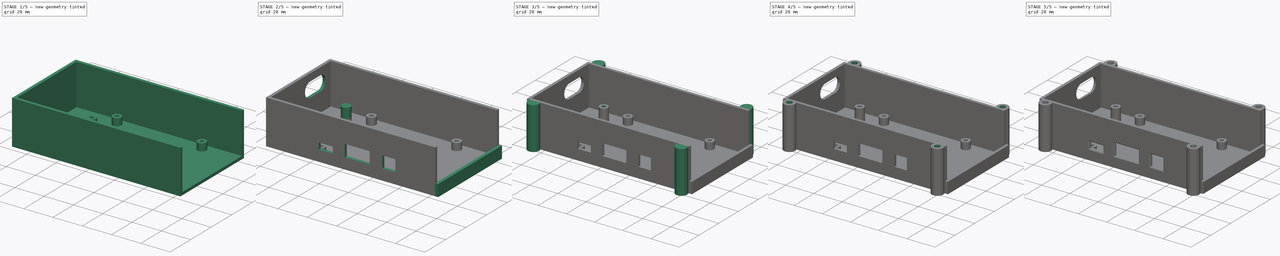
[diagram: build sequence overview — one tinted view per stage of 5, left to right]
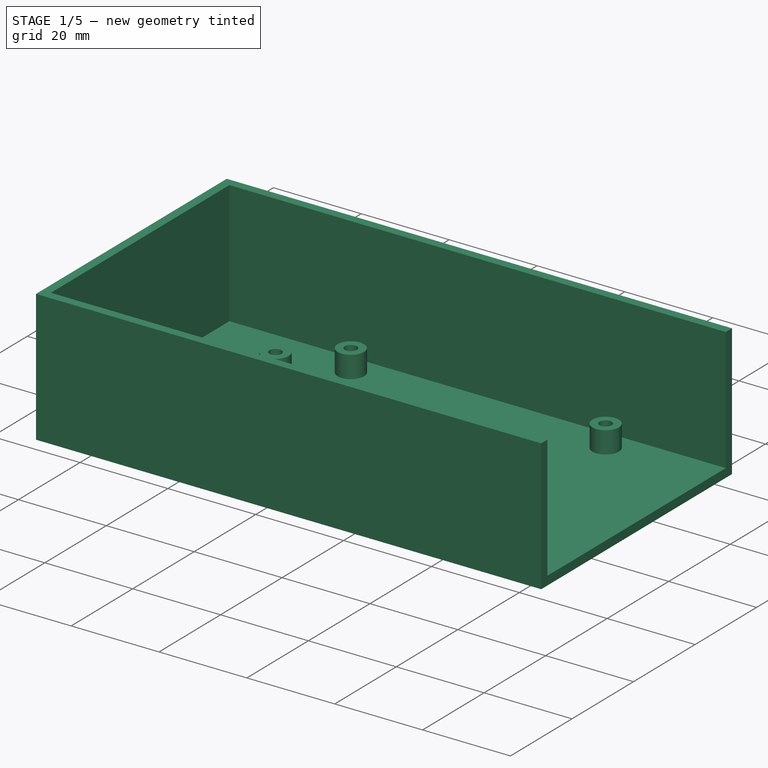
[diagram: stage 1 of 5 — iso view after this stage's code; geometry added in this stage tinted green]
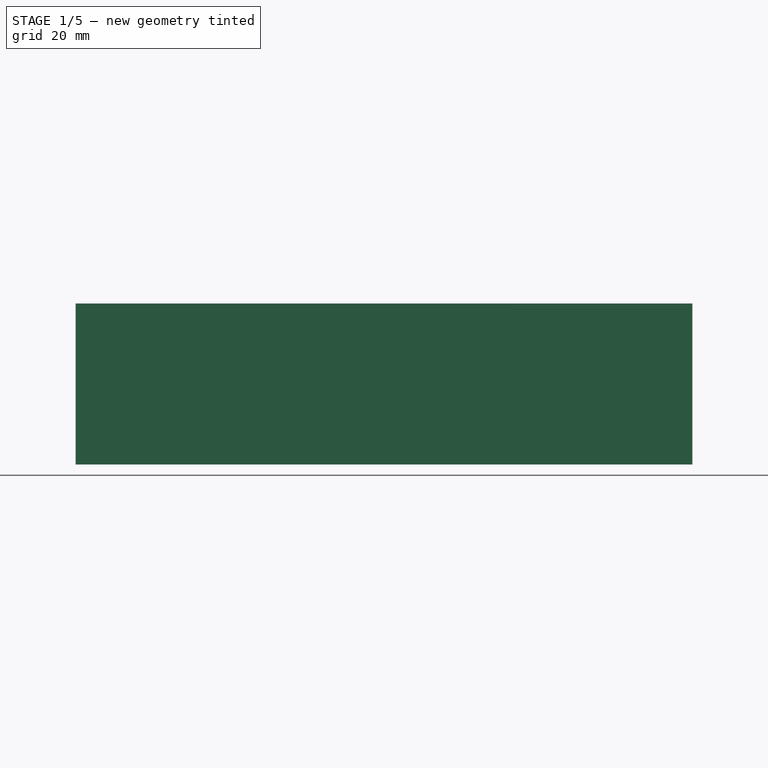
[diagram: stage 1 of 5 — front view after this stage's code; geometry added in this stage tinted green]
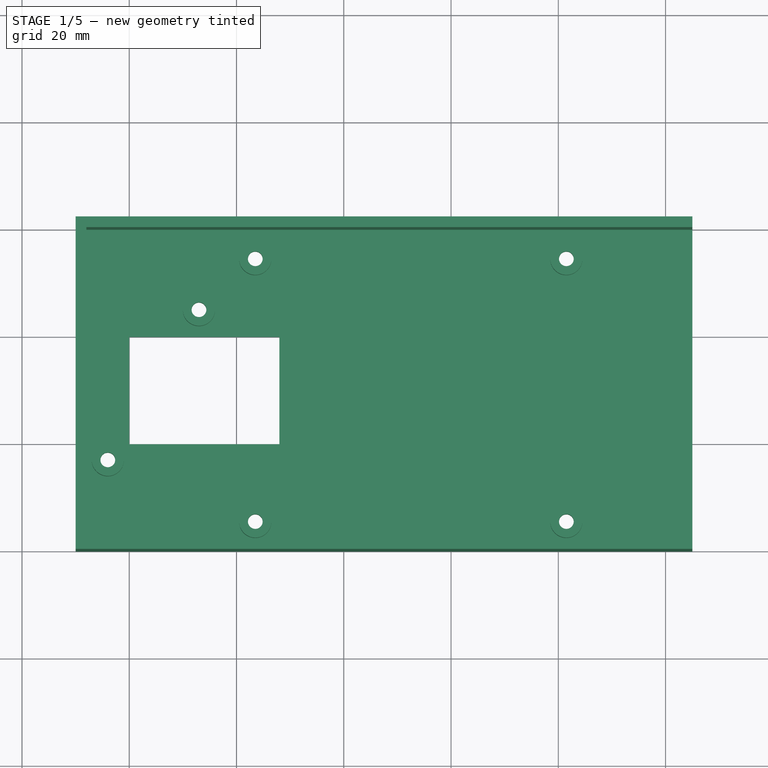
[diagram: stage 1 of 5 — top view after this stage's code; geometry added in this stage tinted green]
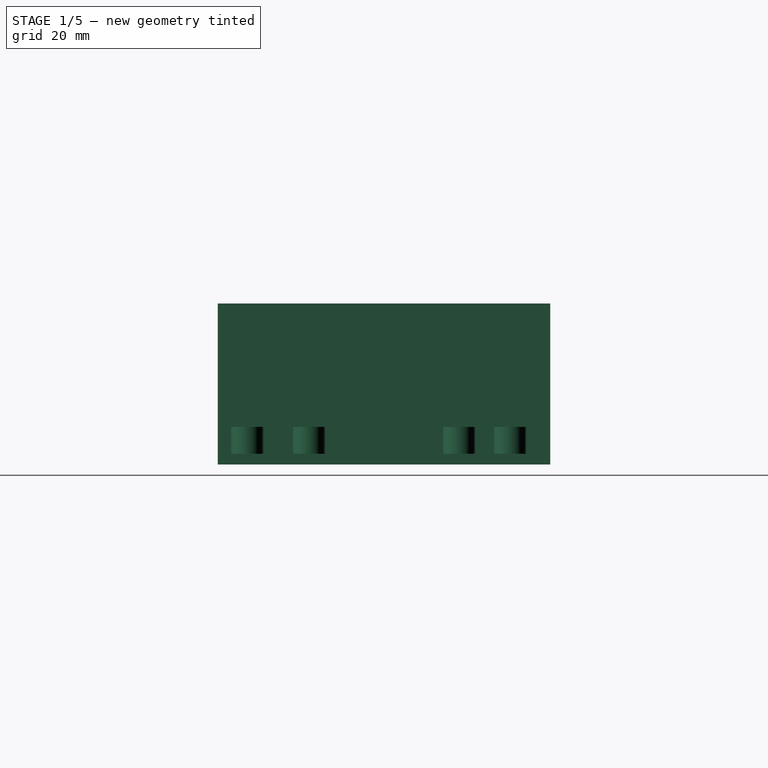
[diagram: stage 1 of 5 — right view after this stage's code; geometry added in this stage tinted green]
FCSTD DOCUMENT  (FreeCAD 0.19R23141 (Git))
Label: RPi 3 Case Bottom 3
License: All rights reserved
LicenseURL: http://en.wikipedia.org/wiki/All_rights_reserved
objects: Sketcher::SketchObject×22, PartDesign::Pocket×16, PartDesign::Pad×6, PartDesign::Fillet×1, PartDesign::Body×1
note: 69 computed .brp shape members not serialized (recipe doc carries the construction recipe); baked Part::Feature solids carry a one-line shape summary decoded from their .brp

FEATURE [Sketcher::SketchObject] Sketch
  MapMode = 5
  Support = -> [XY_Plane]
  sketch-geometry (4):
    g0: LineSegment StartX=-30 StartY=62 StartZ=0 EndX=85 EndY=62 EndZ=0
    g1: LineSegment StartX=85 StartY=62 StartZ=0 EndX=85 EndY=0 EndZ=0
    g2: LineSegment StartX=85 StartY=0 StartZ=0 EndX=-30 EndY=0 EndZ=0
    g3: LineSegment StartX=-30 StartY=0 StartZ=0 EndX=-30 EndY=62 EndZ=0
  constraints (12):
    c: Coincident(g0,g1)
    c: Coincident(g1,g2)
    c: Coincident(g2,g3)
    c: Coincident(g3,g0)
    c: Horizontal(g0)
    c: Horizontal(g2)
    c: Vertical(g1)
    c: Vertical(g3)
    c: DistanceY(g2,g-1) = 0
    c: DistanceX(g-1,g1) = 85
    c: DistanceX(g2,g-1) = 30
    c: DistanceY(g3,g3) = 62
FEATURE [PartDesign::Pad] Pad  label="Main Body"
  Direction = (1,1,1)
  Length = 30
  Length2 = 100
  Profile = -> Sketch
  Type = 0
FEATURE [Sketcher::SketchObject] Sketch001
  ExternalGeometry = -> [Pad]
  MapMode = 5
  Placement = pos=(0,0,30) rot=(0,0,1;0rad)
  Support = -> [Pad]
  sketch-geometry (4):
    g0: LineSegment StartX=-28 StartY=60 StartZ=0 EndX=85 EndY=60 EndZ=0
    g1: LineSegment StartX=85 StartY=60 StartZ=0 EndX=85 EndY=2 EndZ=0
    g2: LineSegment StartX=85 StartY=2 StartZ=0 EndX=-28 EndY=2 EndZ=0
    g3: LineSegment StartX=-28 StartY=2 StartZ=0 EndX=-28 EndY=60 EndZ=0
  constraints (12):
    c: Coincident(g0,g1)
    c: Coincident(g1,g2)
    c: Coincident(g2,g3)
    c: Coincident(g3,g0)
    c: Horizontal(g0)
    c: Horizontal(g2)
    c: Vertical(g1)
    c: Vertical(g3)
    c: DistanceY(g-4,g1) = 2
    c: DistanceX(g-4,g1) = 0
    c: DistanceY(g0,g-4) = 2
    c: DistanceX(g-3,g0) = 2
FEATURE [PartDesign::Pocket] Pocket  label="Main Pocket"
  BaseFeature = -> Pad
  Length = 28
  Length2 = 100
  Profile = -> Sketch001
  Type = 0
FEATURE [Sketcher::SketchObject] Sketch002
  ExternalGeometry = -> [Pocket]
  MapMode = 5
  Placement = pos=(0,0,2) rot=(0,0,1;0rad)
  Support = -> [Pocket]
  sketch-geometry (6):
    g0: Circle CenterX=3.5 CenterY=5.5 CenterZ=0 NormalX=0 NormalY=0 NormalZ=1 AngleXU=0 Radius=3
    g1: Circle CenterX=61.5 CenterY=5.5 CenterZ=0 NormalX=0 NormalY=0 NormalZ=1 AngleXU=0 Radius=3
    g2: Circle CenterX=3.5 CenterY=54.5 CenterZ=0 NormalX=0 NormalY=0 NormalZ=1 AngleXU=0 Radius=3
    g3: Circle CenterX=61.5 CenterY=54.5 CenterZ=0 NormalX=0 NormalY=0 NormalZ=1 AngleXU=0 Radius=3
    g4: Circle CenterX=-7 CenterY=45 CenterZ=0 NormalX=0 NormalY=0 NormalZ=1 AngleXU=0 Radius=3
    g5: Circle CenterX=-24 CenterY=17 CenterZ=0 NormalX=0 NormalY=0 NormalZ=1 AngleXU=0 Radius=3
  constraints (18):
    c: Diameter(g0) = 6
    c: DistanceX(g-1,g0) = 3.5
    c: DistanceY(g-1,g0) = 5.5
    c: Equal(g0,g1) = 2.7
    c: DistanceY(g-1,g1) = 5.5
    c: DistanceX(g0,g1) = 58
    c: Equal(g0,g2) = 2.7
    c: DistanceX(g-1,g2) = 3.5
    c: DistanceY(g0,g2) = 49
    c: Equal(g0,g3) = 2.7
    c: DistanceX(g2,g3) = 58
    c: DistanceY(g1,g3) = 49
    c: Equal(g0,g4) = 2.7
    c: Equal(g0,g5) = 2.7
    c: DistanceY(g5,g4) = 28
    c: DistanceY(g4,g-4) = 17
    c: DistanceX(g5,g4) = 17
    c: DistanceX(g4,g-1) = 7
FEATURE [PartDesign::Pad] Pad001  label="5mm Standoffs"
  BaseFeature = -> Pocket
  Direction = (1,1,1)
  Length = 5
  Length2 = 100
  Profile = -> Sketch002
  Type = 0
FEATURE [Sketcher::SketchObject] Sketch003
  ExternalGeometry = -> [Pad001]
  MapMode = 5
  Placement = pos=(0,0,7) rot=(0,0,1;0rad)
  Support = -> [Pad001]
  sketch-geometry (10):
    g0: Circle CenterX=3.5 CenterY=54.5 CenterZ=0 NormalX=0 NormalY=0 NormalZ=1 AngleXU=0 Radius=1.375
    g1: Circle CenterX=61.5 CenterY=54.5 CenterZ=0 NormalX=0 NormalY=0 NormalZ=1 AngleXU=0 Radius=1.375
    g2: Circle CenterX=3.5 CenterY=5.5 CenterZ=0 NormalX=0 NormalY=0 NormalZ=1 AngleXU=0 Radius=1.375
    g3: Circle CenterX=61.5 CenterY=5.5 CenterZ=0 NormalX=0 NormalY=0 NormalZ=1 AngleXU=0 Radius=1.375
    g4: Circle CenterX=-7 CenterY=45 CenterZ=0 NormalX=0 NormalY=0 NormalZ=1 AngleXU=0 Radius=1.375
    g5: Circle CenterX=-24 CenterY=17 CenterZ=0 NormalX=0 NormalY=0 NormalZ=1 AngleXU=0 Radius=1.375
    g6: LineSegment StartX=-20 StartY=40 StartZ=0 EndX=8 EndY=40 EndZ=0
    g7: LineSegment StartX=8 StartY=40 StartZ=0 EndX=8 EndY=20 EndZ=0
    g8: LineSegment StartX=8 StartY=20 StartZ=0 EndX=-20 EndY=20 EndZ=0
    g9: LineSegment StartX=-20 StartY=20 StartZ=0 EndX=-20 EndY=40 EndZ=0
  constraints (24):
    c: Coincident(g0,g-3)
    c: Diameter(g0) = 2.75
    c: Equal(g0,g1) = 2.75
    c: Coincident(g1,g-4)
    c: Equal(g0,g2) = 2.75
    c: Coincident(g2,g-6)
    c: Equal(g0,g3) = 2.75
    c: Coincident(g3,g-5)
    c: Equal(g0,g4) = 2.75
    c: Coincident(g4,g-7)
    c: Equal(g0,g5) = 2.75
    c: Coincident(g5,g-8)
    c: Coincident(g6,g7)
    c: Coincident(g7,g8)
    c: Coincident(g8,g9)
    c: Coincident(g9,g6)
    c: Horizontal(g6)
    c: Horizontal(g8)
    c: Vertical(g7)
    c: Vertical(g9)
    c: DistanceY(g7,g7) = 20
    c: DistanceX(g6,g6) = 28
    c: DistanceX(g-1,g7) = 8
    c: DistanceY(g-1,g8) = 20
FEATURE [PartDesign::Pocket] Pocket001  label="Standoff holes"
  BaseFeature = -> Pad001
  Length = 7
  Length2 = 100
  Profile = -> Sketch003
  Type = 0
FEATURE [Sketcher::SketchObject] Sketch004
  ExternalGeometry = -> [Pocket001]
  MapMode = 5
  Placement = pos=(0,0,0) rot=(1,0,0;3.14159rad)
  Support = -> [Pocket001]
  sketch-geometry (42):
    g0: LineSegment StartX=4.75 StartY=-7.66506 StartZ=0 EndX=6 EndY=-5.5 EndZ=0
    g1: LineSegment StartX=6 StartY=-5.5 StartZ=0 EndX=4.75 EndY=-3.33494 EndZ=0
    g2: LineSegment StartX=4.75 StartY=-3.33494 StartZ=0 EndX=2.25 EndY=-3.33494 EndZ=0
    g3: LineSegment StartX=2.25 StartY=-3.33494 StartZ=0 EndX=1 EndY=-5.5 EndZ=0
    g4: LineSegment StartX=1 StartY=-5.5 StartZ=0 EndX=2.25 EndY=-7.66506 EndZ=0
    g5: LineSegment StartX=2.25 StartY=-7.66506 StartZ=0 EndX=4.75 EndY=-7.66506 EndZ=0
    g6: Circle [constr] CenterX=3.5 CenterY=-5.5 CenterZ=0 NormalX=0 NormalY=0 NormalZ=1 AngleXU=0 Radius=2.5
    g7: LineSegment StartX=62.75 StartY=-7.66506 StartZ=0 EndX=64 EndY=-5.5 EndZ=0
    g8: LineSegment StartX=64 StartY=-5.5 StartZ=0 EndX=62.75 EndY=-3.33494 EndZ=0
    g9: LineSegment StartX=62.75 StartY=-3.33494 StartZ=0 EndX=60.25 EndY=-3.33494 EndZ=0
    g10: LineSegment StartX=60.25 StartY=-3.33494 StartZ=0 EndX=59 EndY=-5.5 EndZ=0
    g11: LineSegment StartX=59 StartY=-5.5 StartZ=0 EndX=60.25 EndY=-7.66506 EndZ=0
    g12: LineSegment StartX=60.25 StartY=-7.66506 StartZ=0 EndX=62.75 EndY=-7.66506 EndZ=0
    g13: Circle [constr] CenterX=61.5 CenterY=-5.5 CenterZ=0 NormalX=0 NormalY=0 NormalZ=1 AngleXU=0 Radius=2.5
    g14: LineSegment StartX=62.75 StartY=-56.6651 StartZ=0 EndX=64 EndY=-54.5 EndZ=0
    g15: LineSegment StartX=64 StartY=-54.5 StartZ=0 EndX=62.75 EndY=-52.3349 EndZ=0
    g16: LineSegment StartX=62.75 StartY=-52.3349 StartZ=0 EndX=60.25 EndY=-52.3349 EndZ=0
    g17: LineSegment StartX=60.25 StartY=-52.3349 StartZ=0 EndX=59 EndY=-54.5 EndZ=0
    g18: LineSegment StartX=59 StartY=-54.5 StartZ=0 EndX=60.25 EndY=-56.6651 EndZ=0
    g19: LineSegment StartX=60.25 StartY=-56.6651 StartZ=0 EndX=62.75 EndY=-56.6651 EndZ=0
    g20: Circle [constr] CenterX=61.5 CenterY=-54.5 CenterZ=0 NormalX=0 NormalY=0 NormalZ=1 AngleXU=0 Radius=2.5
    g21: LineSegment StartX=4.75 StartY=-56.6651 StartZ=0 EndX=6 EndY=-54.5 EndZ=0
    g22: LineSegment StartX=6 StartY=-54.5 StartZ=0 EndX=4.75 EndY=-52.3349 EndZ=0
    g23: LineSegment StartX=4.75 StartY=-52.3349 StartZ=0 EndX=2.25 EndY=-52.3349 EndZ=0
    g24: LineSegment StartX=2.25 StartY=-52.3349 StartZ=0 EndX=1 EndY=-54.5 EndZ=0
    g25: LineSegment StartX=1 StartY=-54.5 StartZ=0 EndX=2.25 EndY=-56.6651 EndZ=0
    g26: LineSegment StartX=2.25 StartY=-56.6651 StartZ=0 EndX=4.75 EndY=-56.6651 EndZ=0
    g27: Circle [constr] CenterX=3.5 CenterY=-54.5 CenterZ=0 NormalX=0 NormalY=0 NormalZ=1 AngleXU=0 Radius=2.5
    g28: LineSegment StartX=-5.75 StartY=-47.1651 StartZ=0 EndX=-4.5 EndY=-45 EndZ=0
    g29: LineSegment StartX=-4.5 StartY=-45 StartZ=0 EndX=-5.75 EndY=-42.8349 EndZ=0
    g30: LineSegment StartX=-5.75 StartY=-42.8349 StartZ=0 EndX=-8.25 EndY=-42.8349 EndZ=0
    g31: LineSegment StartX=-8.25 StartY=-42.8349 StartZ=0 EndX=-9.5 EndY=-45 EndZ=0
    g32: LineSegment StartX=-9.5 StartY=-45 StartZ=0 EndX=-8.25 EndY=-47.1651 EndZ=0
    g33: LineSegment StartX=-8.25 StartY=-47.1651 StartZ=0 EndX=-5.75 EndY=-47.1651 EndZ=0
    g34: Circle [constr] CenterX=-7 CenterY=-45 CenterZ=0 NormalX=0 NormalY=0 NormalZ=1 AngleXU=0 Radius=2.5
    g35: LineSegment StartX=-22.75 StartY=-19.1651 StartZ=0 EndX=-21.5 EndY=-17 EndZ=0
    g36: LineSegment StartX=-21.5 StartY=-17 StartZ=0 EndX=-22.75 EndY=-14.8349 EndZ=0
    g37: LineSegment StartX=-22.75 StartY=-14.8349 StartZ=0 EndX=-25.25 EndY=-14.8349 EndZ=0
    g38: LineSegment StartX=-25.25 StartY=-14.8349 StartZ=0 EndX=-26.5 EndY=-17 EndZ=0
    g39: LineSegment StartX=-26.5 StartY=-17 StartZ=0 EndX=-25.25 EndY=-19.1651 EndZ=0
    g40: LineSegment StartX=-25.25 StartY=-19.1651 StartZ=0 EndX=-22.75 EndY=-19.1651 EndZ=0
    g41: Circle [constr] CenterX=-24 CenterY=-17 CenterZ=0 NormalX=0 NormalY=0 NormalZ=1 AngleXU=0 Radius=2.5
  constraints (96):
    c: Coincident(g0,g1)
    c: Coincident(g1,g2)
    c: Coincident(g2,g3)
    c: Coincident(g3,g4)
    c: Coincident(g4,g5)
    c: Coincident(g5,g0)
    c: Equal(g0, g1-g5) x5
    c: PointOnObject(g0,g6)
    c: PointOnObject(g1,g6)
    c: PointOnObject(g2,g6)
    c: PointOnObject(g3,g6)
    c: PointOnObject(g4,g6)
    c: PointOnObject(g5,g6)
    c: Coincident(g6,g-3)
    c: Diameter(g6) = 5
    c: Parallel(g2,g-1)
    c: Coincident(g7,g8)
    c: Coincident(g8,g9)
    c: Coincident(g9,g10)
    c: Coincident(g10,g11)
    c: Coincident(g11,g12)
    c: Coincident(g12,g7)
    c: Equal(g7, g8-g12) x5
    c: PointOnObject(g7,g13)
    c: PointOnObject(g8,g13)
    c: PointOnObject(g9,g13)
    c: PointOnObject(g10,g13)
    c: PointOnObject(g11,g13)
    c: PointOnObject(g12,g13)
    c: Equal(g6,g13) = 5
    c: Coincident(g13,g-4)
    c: Coincident(g14,g15)
    c: Coincident(g15,g16)
    c: Coincident(g16,g17)
    c: Coincident(g17,g18)
    c: Coincident(g18,g19)
    c: Coincident(g19,g14)
    c: Equal(g14, g15-g19) x5
    c: PointOnObject(g14,g20)
    c: PointOnObject(g15,g20)
    c: PointOnObject(g16,g20)
    c: PointOnObject(g17,g20)
    c: PointOnObject(g18,g20)
    c: PointOnObject(g19,g20)
    c: Equal(g6,g20) = 5
    c: Coincident(g20,g-5)
    c: Coincident(g21,g22)
    c: Coincident(g22,g23)
    c: Coincident(g23,g24)
    c: Coincident(g24,g25)
    c: Coincident(g25,g26)
    c: Coincident(g26,g21)
    c: Equal(g21, g22-g26) x5
    c: PointOnObject(g21,g27)
    c: PointOnObject(g22,g27)
    c: PointOnObject(g23,g27)
    c: PointOnObject(g24,g27)
    c: PointOnObject(g25,g27)
    c: PointOnObject(g26,g27)
    c: Equal(g6,g27) = 5
    c: Coincident(g27,g-6)
    c: Coincident(g28,g29)
    c: Coincident(g29,g30)
    c: Coincident(g30,g31)
    c: Coincident(g31,g32)
    c: Coincident(g32,g33)
    c: Coincident(g33,g28)
    c: Equal(g28, g29-g33) x5
    c: PointOnObject(g28,g34)
    c: PointOnObject(g29,g34)
    c: PointOnObject(g30,g34)
    c: PointOnObject(g31,g34)
    c: PointOnObject(g32,g34)
    c: PointOnObject(g33,g34)
    c: Equal(g6,g34) = 5
    c: Coincident(g34,g-7)
    c: Coincident(g35,g36)
    c: Coincident(g36,g37)
    c: Coincident(g37,g38)
    c: Coincident(g38,g39)
    c: Coincident(g39,g40)
    c: Coincident(g40,g35)
    c: Equal(g35, g36-g40) x5
    c: PointOnObject(g35,g41)
    c: PointOnObject(g36,g41)
    c: PointOnObject(g37,g41)
    c: PointOnObject(g38,g41)
    c: PointOnObject(g39,g41)
    c: PointOnObject(g40,g41)
    c: Equal(g6,g41) = 5
    c: Coincident(g41,g-8)
    c: Parallel(g37,g-1)
    c: Parallel(g30,g-1)
    c: Parallel(g23,g-1)
    c: Parallel(g9,g-1)
    c: Parallel(g16,g-1)
FEATURE [PartDesign::Pocket] Pocket002  label="NutRecesses"
  BaseFeature = -> Pocket001
  Length = 2
  Length2 = 100
  Profile = -> Sketch004
  Type = 0
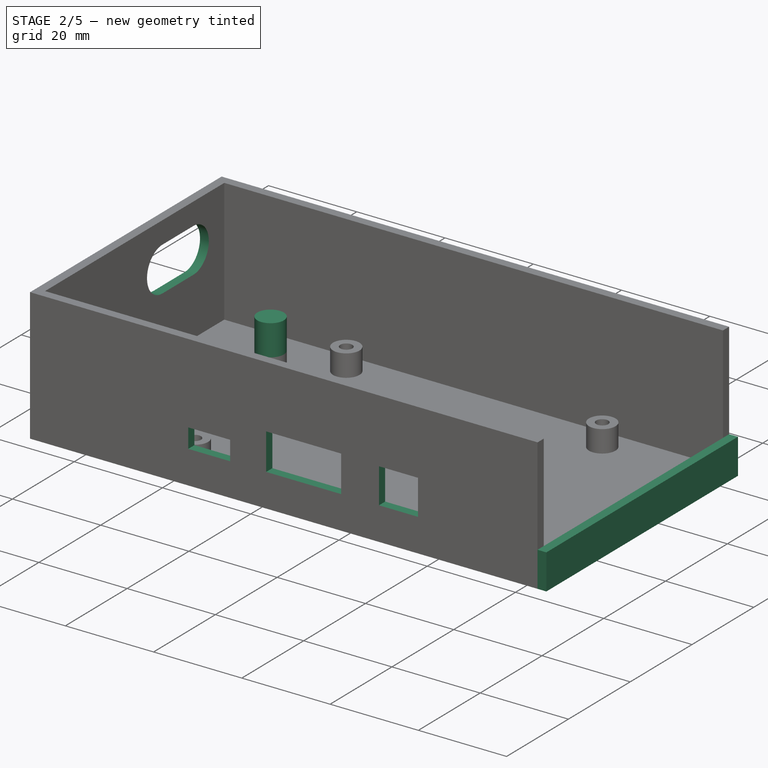
[diagram: stage 2 of 5 — iso view after this stage's code; geometry added in this stage tinted green]
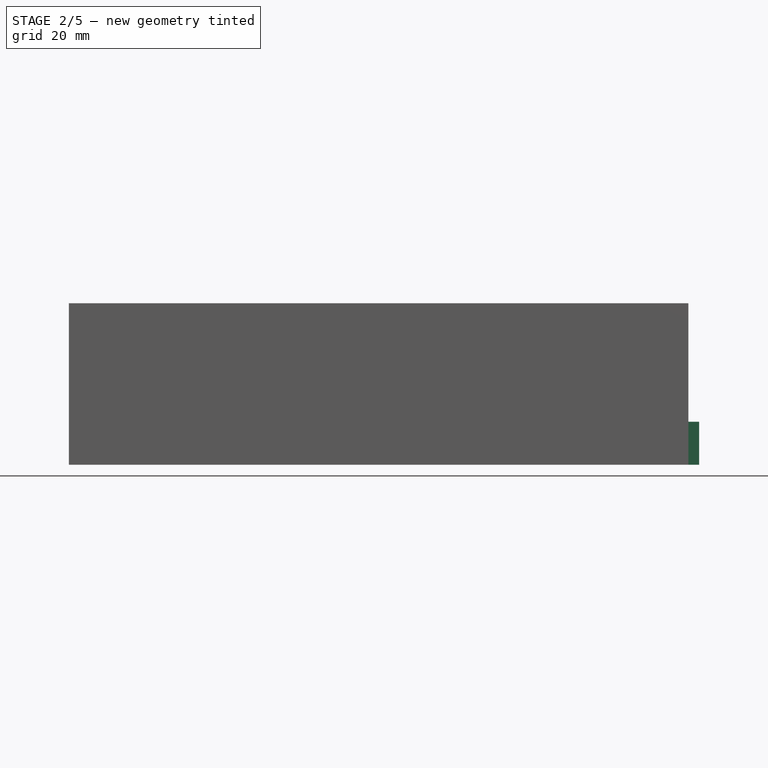
[diagram: stage 2 of 5 — front view after this stage's code; geometry added in this stage tinted green]
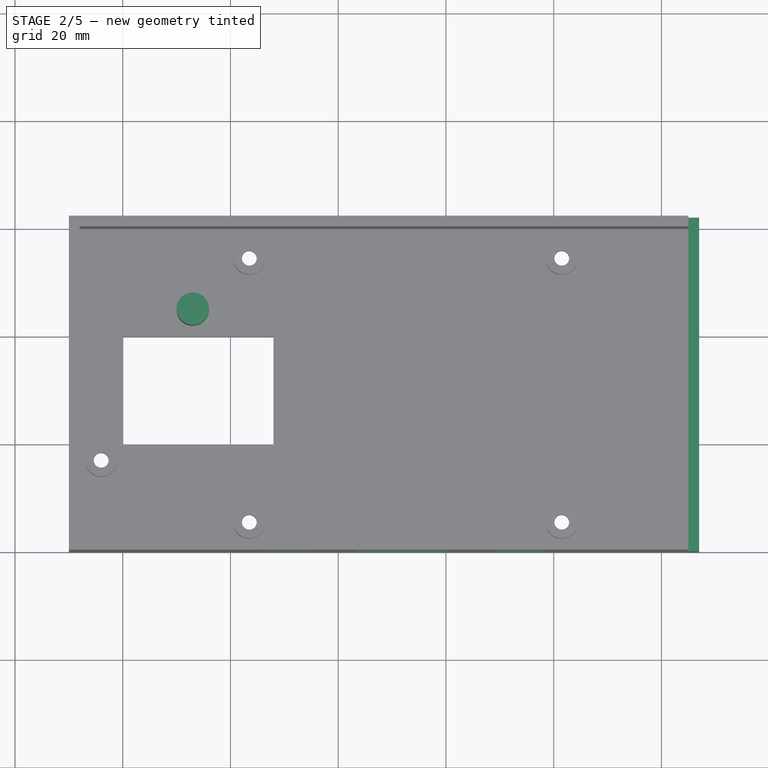
[diagram: stage 2 of 5 — top view after this stage's code; geometry added in this stage tinted green]
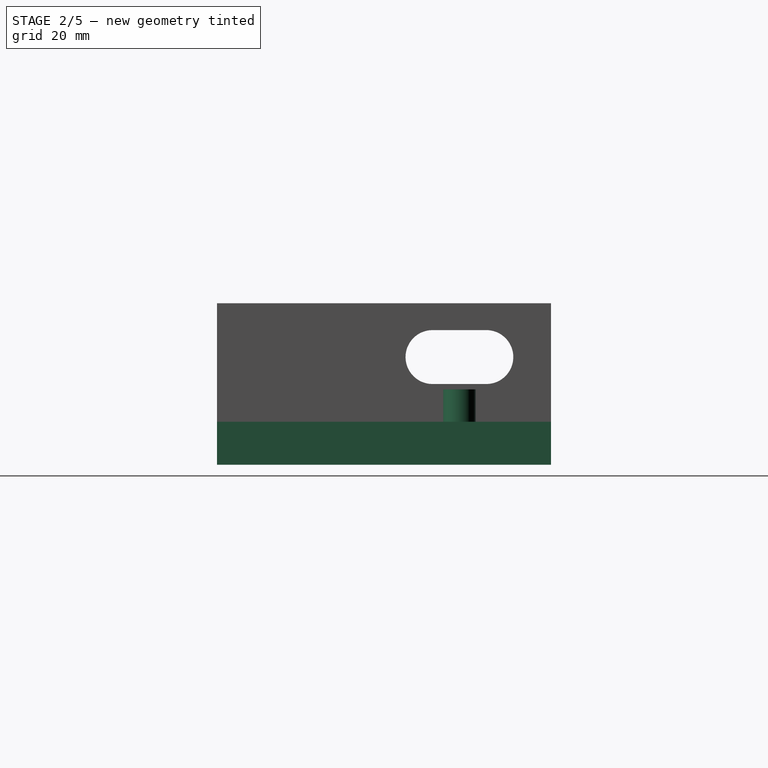
[diagram: stage 2 of 5 — right view after this stage's code; geometry added in this stage tinted green]
FEATURE [Sketcher::SketchObject] Sketch005
  MapMode = 5
  Placement = pos=(0,0,0) rot=(1,0,0;1.5708rad)
  Support = -> [Pocket002]
  sketch-geometry (12):
    g0: LineSegment StartX=5.85 StartY=11.9 StartZ=0 EndX=15.35 EndY=11.9 EndZ=0
    g1: LineSegment StartX=15.35 StartY=11.9 StartZ=0 EndX=15.35 EndY=7.5 EndZ=0
    g2: LineSegment StartX=15.35 StartY=7.5 StartZ=0 EndX=5.85 EndY=7.5 EndZ=0
    g3: LineSegment StartX=5.85 StartY=7.5 StartZ=0 EndX=5.85 EndY=11.9 EndZ=0
    g4: LineSegment StartX=23.5 StartY=15.8 StartZ=0 EndX=40.5 EndY=15.8 EndZ=0
    g5: LineSegment StartX=40.5 StartY=15.8 StartZ=0 EndX=40.5 EndY=7.5 EndZ=0
    g6: LineSegment StartX=40.5 StartY=7.5 StartZ=0 EndX=23.5 EndY=7.5 EndZ=0
    g7: LineSegment StartX=23.5 StartY=7.5 StartZ=0 EndX=23.5 EndY=15.8 EndZ=0
    g8: LineSegment StartX=49.075 StartY=15.5 StartZ=0 EndX=57.925 EndY=15.5 EndZ=0
    g9: LineSegment StartX=57.925 StartY=15.5 StartZ=0 EndX=57.925 EndY=7.5 EndZ=0
    g10: LineSegment StartX=57.925 StartY=7.5 StartZ=0 EndX=49.075 EndY=7.5 EndZ=0
    g11: LineSegment StartX=49.075 StartY=7.5 StartZ=0 EndX=49.075 EndY=15.5 EndZ=0
  constraints (36):
    c: Coincident(g0,g1)
    c: Coincident(g1,g2)
    c: Coincident(g2,g3)
    c: Coincident(g3,g0)
    c: Horizontal(g0)
    c: Horizontal(g2)
    c: Vertical(g1)
    c: Vertical(g3)
    c: Coincident(g4,g5)
    c: Coincident(g5,g6)
    c: Coincident(g6,g7)
    c: Coincident(g7,g4)
    c: Horizontal(g4)
    c: Horizontal(g6)
    c: Vertical(g5)
    c: Vertical(g7)
    c: Coincident(g8,g9)
    c: Coincident(g9,g10)
    c: Coincident(g10,g11)
    c: Coincident(g11,g8)
    c: Horizontal(g8)
    c: Horizontal(g10)
    c: Vertical(g9)
    c: Vertical(g11)
    c: DistanceY(g-1,g2) = 7.5
    c: DistanceY(g-1,g6) = 7.5
    c: DistanceY(g-1,g10) = 7.5
    c: DistanceY(g3,g3) = 4.4
    c: DistanceX(g0,g0) = 9.5
    c: DistanceY(g7,g7) = 8.3
    c: DistanceX(g4,g4) = 17
    c: DistanceY(g9,g9) = 8
    c: DistanceX(g8,g8) = 8.85
    c: DistanceX(g-1,g2) = 5.85
    c: DistanceX(g-1,g6) = 23.5
    c: DistanceX(g-1,g10) = 49.075
FEATURE [PartDesign::Pocket] Pocket003  label="Power & HDMI Cutouts"
  BaseFeature = -> Pocket002
  Length = 2
  Length2 = 100
  Profile = -> Sketch005
  Type = 0
FEATURE [Sketcher::SketchObject] Sketch006
  ExternalGeometry = -> [Pocket003]
  MapMode = 5
  Placement = pos=(85,0,0) rot=(0.57735,0.57735,0.57735;2.0944rad)
  Support = -> [Pocket003]
  sketch-geometry (4):
    g0: LineSegment StartX=0 StartY=0 StartZ=0 EndX=62 EndY=0 EndZ=0
    g1: LineSegment StartX=62 StartY=0 StartZ=0 EndX=62 EndY=8 EndZ=0
    g2: LineSegment StartX=62 StartY=8 StartZ=0 EndX=0 EndY=8 EndZ=0
    g3: LineSegment StartX=0 StartY=8 StartZ=0 EndX=0 EndY=0 EndZ=0
  constraints (10):
    c: Coincident(g0,g1)
    c: Coincident(g1,g2)
    c: Coincident(g2,g3)
    c: Coincident(g3,g0)
    c: Horizontal(g2)
    c: Vertical(g1)
    c: Vertical(g3)
    c: Coincident(g0,g-1)
    c: Coincident(g-3,g0)
    c: DistanceY(g3,g3) = 8
FEATURE [PartDesign::Pad] Pad002  label="8mm Front Lip"
  BaseFeature = -> Pocket003
  Direction = (1,1,1)
  Length = 2
  Length2 = 100
  Profile = -> Sketch006
  Type = 0
FEATURE [Sketcher::SketchObject] Sketch007
  MapMode = 5
  Placement = pos=(-30,0,0) rot=(0.57735,-0.57735,-0.57735;2.0944rad)
  Support = -> [Pad002]
  sketch-geometry (4):
    g0: ArcOfCircle CenterX=-50 CenterY=20 CenterZ=0 NormalX=0 NormalY=0 NormalZ=1 AngleXU=0 Radius=5 StartAngle=1.5708 EndAngle=4.71239
    g1: ArcOfCircle CenterX=-40 CenterY=20 CenterZ=0 NormalX=0 NormalY=0 NormalZ=1 AngleXU=0 Radius=5 StartAngle=4.71239 EndAngle=7.85398
    g2: LineSegment StartX=-50 StartY=15 StartZ=0 EndX=-40 EndY=15 EndZ=0
    g3: LineSegment StartX=-50 StartY=25 StartZ=0 EndX=-40 EndY=25 EndZ=0
  constraints (10):
    c: Tangent(g0,g3)
    c: Tangent(g0,g2)
    c: Tangent(g2,g1)
    c: Tangent(g3,g1)
    c: Horizontal(g2)
    c: Equal(g0,g1)
    c: DistanceX(g0,g1) = 10
    c: DistanceY(g0,g0) = 10
    c: DistanceX(g0,g-1) = 50
    c: DistanceY(g-1,g1) = 15
FEATURE [PartDesign::Pocket] Pocket004  label="24V Wires"
  BaseFeature = -> Pad002
  Length = 2
  Length2 = 100
  Profile = -> Sketch007
  Type = 0
FEATURE [Sketcher::SketchObject] Sketch010
  ExternalGeometry = -> [Pocket004]
  MapMode = 5
  Placement = pos=(0,0,7) rot=(0,0,1;0rad)
  sketch-geometry (1):
    g0: Circle CenterX=-7 CenterY=45 CenterZ=0 NormalX=0 NormalY=0 NormalZ=1 AngleXU=0 Radius=3
  constraints (2):
    c: Diameter(g0) = 6
    c: Coincident(g0,g-3)
FEATURE [PartDesign::Pad] Pad004  label="BC Standoff Extension 2"
  BaseFeature = -> Pocket004
  Direction = (1,1,1)
  Length = 7
  Length2 = 100
  Profile = -> Sketch010
  Type = 0
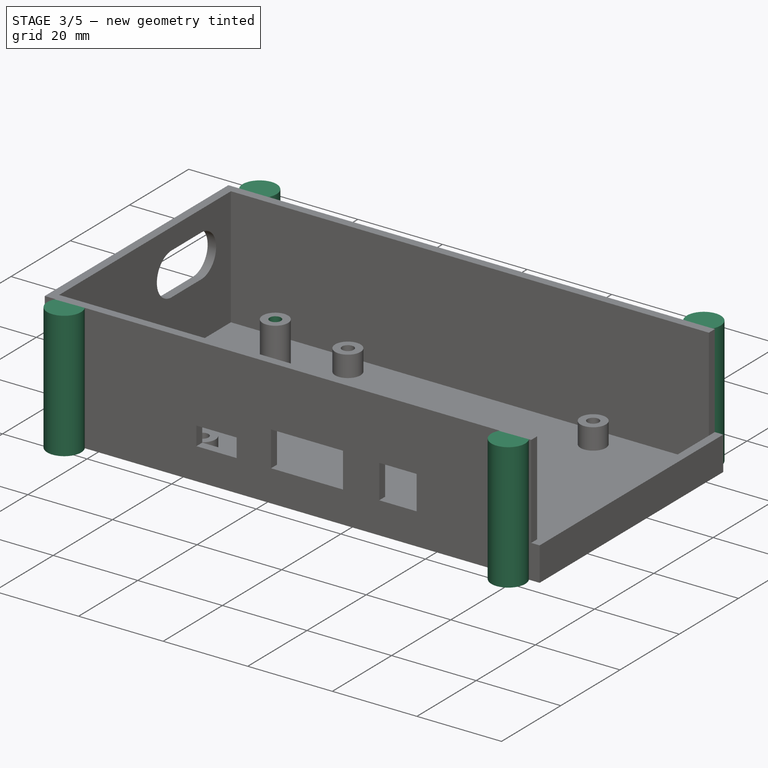
[diagram: stage 3 of 5 — iso view after this stage's code; geometry added in this stage tinted green]
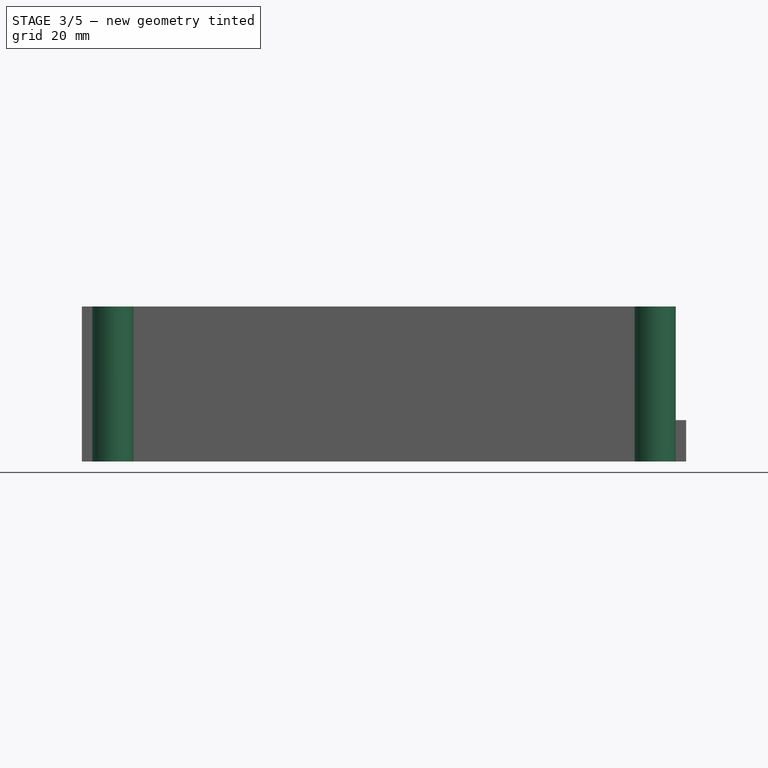
[diagram: stage 3 of 5 — front view after this stage's code; geometry added in this stage tinted green]
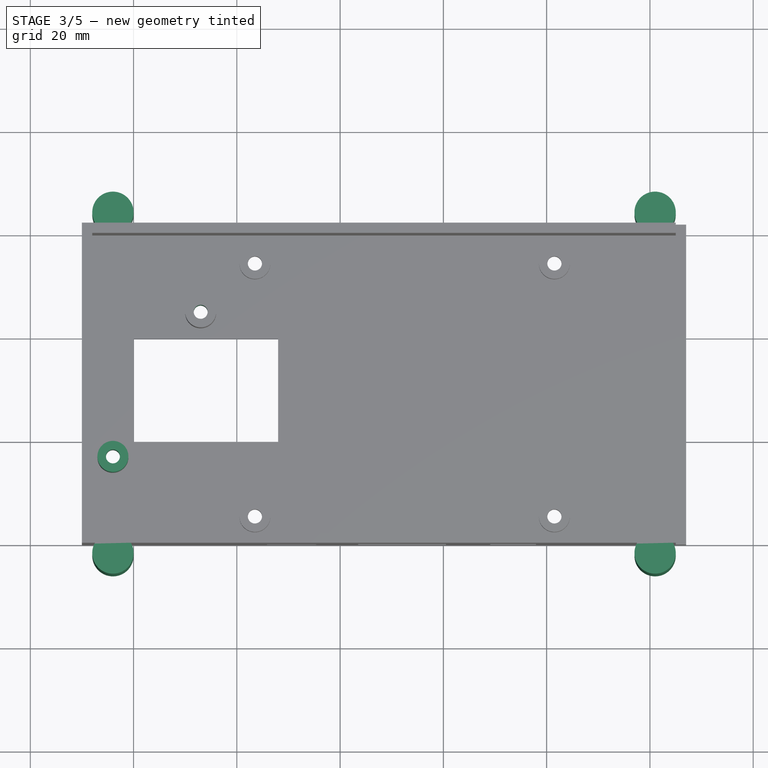
[diagram: stage 3 of 5 — top view after this stage's code; geometry added in this stage tinted green]
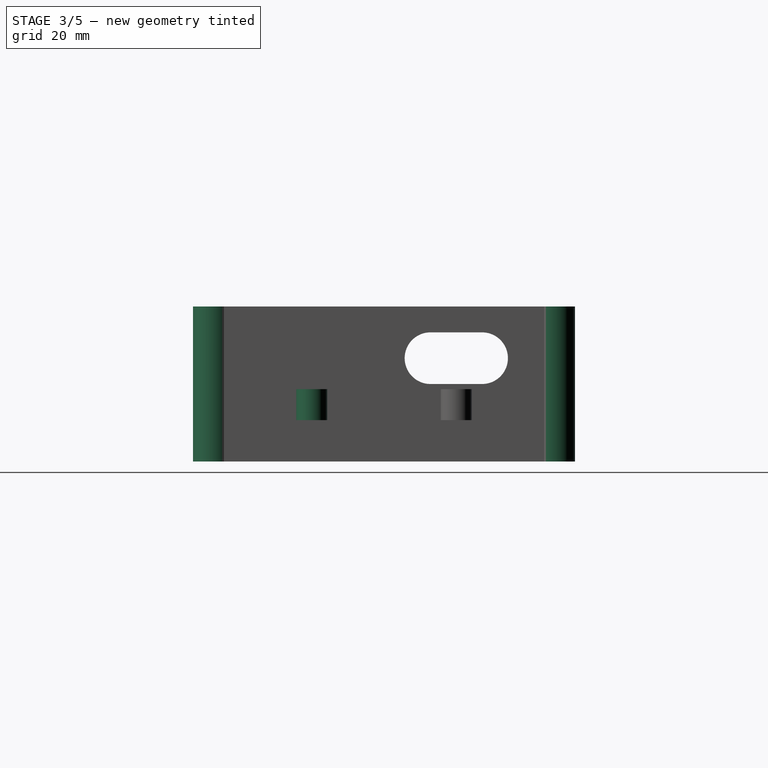
[diagram: stage 3 of 5 — right view after this stage's code; geometry added in this stage tinted green]
FEATURE [Sketcher::SketchObject] Sketch013
  ExternalGeometry = -> [Pocket001]
  MapMode = 5
  Placement = pos=(0,0,0) rot=(1,0,0;3.14159rad)
  Support = -> [Pocket001]
  sketch-geometry (42):
    g0: LineSegment StartX=-22.75 StartY=-19.1651 StartZ=0 EndX=-21.5 EndY=-17 EndZ=0
    g1: LineSegment StartX=-21.5 StartY=-17 StartZ=0 EndX=-22.75 EndY=-14.8349 EndZ=0
    g2: LineSegment StartX=-22.75 StartY=-14.8349 StartZ=0 EndX=-25.25 EndY=-14.8349 EndZ=0
    g3: LineSegment StartX=-25.25 StartY=-14.8349 StartZ=0 EndX=-26.5 EndY=-17 EndZ=0
    g4: LineSegment StartX=-26.5 StartY=-17 StartZ=0 EndX=-25.25 EndY=-19.1651 EndZ=0
    g5: LineSegment StartX=-25.25 StartY=-19.1651 StartZ=0 EndX=-22.75 EndY=-19.1651 EndZ=0
    g6: Circle [constr] CenterX=-24 CenterY=-17 CenterZ=0 NormalX=0 NormalY=0 NormalZ=1 AngleXU=0 Radius=2.5
    g7: LineSegment StartX=4.75 StartY=-7.66506 StartZ=0 EndX=6 EndY=-5.5 EndZ=0
    g8: LineSegment StartX=6 StartY=-5.5 StartZ=0 EndX=4.75 EndY=-3.33494 EndZ=0
    g9: LineSegment StartX=4.75 StartY=-3.33494 StartZ=0 EndX=2.25 EndY=-3.33494 EndZ=0
    g10: LineSegment StartX=2.25 StartY=-3.33494 StartZ=0 EndX=1 EndY=-5.5 EndZ=0
    g11: LineSegment StartX=1 StartY=-5.5 StartZ=0 EndX=2.25 EndY=-7.66506 EndZ=0
    g12: LineSegment StartX=2.25 StartY=-7.66506 StartZ=0 EndX=4.75 EndY=-7.66506 EndZ=0
    g13: Circle [constr] CenterX=3.5 CenterY=-5.5 CenterZ=0 NormalX=0 NormalY=0 NormalZ=1 AngleXU=0 Radius=2.5
    g14: LineSegment StartX=-5.75 StartY=-47.1651 StartZ=0 EndX=-4.5 EndY=-45 EndZ=0
    g15: LineSegment StartX=-4.5 StartY=-45 StartZ=0 EndX=-5.75 EndY=-42.8349 EndZ=0
    g16: LineSegment StartX=-5.75 StartY=-42.8349 StartZ=0 EndX=-8.25 EndY=-42.8349 EndZ=0
    g17: LineSegment StartX=-8.25 StartY=-42.8349 StartZ=0 EndX=-9.5 EndY=-45 EndZ=0
    g18: LineSegment StartX=-9.5 StartY=-45 StartZ=0 EndX=-8.25 EndY=-47.1651 EndZ=0
    g19: LineSegment StartX=-8.25 StartY=-47.1651 StartZ=0 EndX=-5.75 EndY=-47.1651 EndZ=0
    g20: Circle [constr] CenterX=-7 CenterY=-45 CenterZ=0 NormalX=0 NormalY=0 NormalZ=1 AngleXU=0 Radius=2.5
    g21: LineSegment StartX=6 StartY=-54.5 StartZ=0 EndX=4.75 EndY=-52.3349 EndZ=0
    g22: LineSegment StartX=4.75 StartY=-52.3349 StartZ=0 EndX=2.25 EndY=-52.3349 EndZ=0
    g23: LineSegment StartX=2.25 StartY=-52.3349 StartZ=0 EndX=1 EndY=-54.5 EndZ=0
    g24: LineSegment StartX=1 StartY=-54.5 StartZ=0 EndX=2.25 EndY=-56.6651 EndZ=0
    g25: LineSegment StartX=2.25 StartY=-56.6651 StartZ=0 EndX=4.75 EndY=-56.6651 EndZ=0
    g26: LineSegment StartX=4.75 StartY=-56.6651 StartZ=0 EndX=6 EndY=-54.5 EndZ=0
    g27: Circle [constr] CenterX=3.5 CenterY=-54.5 CenterZ=0 NormalX=0 NormalY=0 NormalZ=1 AngleXU=0 Radius=2.5
    g28: LineSegment StartX=64 StartY=-54.5 StartZ=0 EndX=62.75 EndY=-52.3349 EndZ=0
    g29: LineSegment StartX=62.75 StartY=-52.3349 StartZ=0 EndX=60.25 EndY=-52.3349 EndZ=0
    g30: LineSegment StartX=60.25 StartY=-52.3349 StartZ=0 EndX=59 EndY=-54.5 EndZ=0
    g31: LineSegment StartX=59 StartY=-54.5 StartZ=0 EndX=60.25 EndY=-56.6651 EndZ=0
    g32: LineSegment StartX=60.25 StartY=-56.6651 StartZ=0 EndX=62.75 EndY=-56.6651 EndZ=0
    g33: LineSegment StartX=62.75 StartY=-56.6651 StartZ=0 EndX=64 EndY=-54.5 EndZ=0
    g34: Circle [constr] CenterX=61.5 CenterY=-54.5 CenterZ=0 NormalX=0 NormalY=0 NormalZ=1 AngleXU=0 Radius=2.5
    g35: LineSegment StartX=64 StartY=-5.5 StartZ=0 EndX=62.75 EndY=-3.33494 EndZ=0
    g36: LineSegment StartX=62.75 StartY=-3.33494 StartZ=0 EndX=60.25 EndY=-3.33494 EndZ=0
    g37: LineSegment StartX=60.25 StartY=-3.33494 StartZ=0 EndX=59 EndY=-5.5 EndZ=0
    g38: LineSegment StartX=59 StartY=-5.5 StartZ=0 EndX=60.25 EndY=-7.66506 EndZ=0
    g39: LineSegment StartX=60.25 StartY=-7.66506 StartZ=0 EndX=62.75 EndY=-7.66506 EndZ=0
    g40: LineSegment StartX=62.75 StartY=-7.66506 StartZ=0 EndX=64 EndY=-5.5 EndZ=0
    g41: Circle [constr] CenterX=61.5 CenterY=-5.5 CenterZ=0 NormalX=0 NormalY=0 NormalZ=1 AngleXU=0 Radius=2.5
  constraints (96):
    c: Coincident(g0,g1)
    c: Coincident(g1,g2)
    c: Coincident(g2,g3)
    c: Coincident(g3,g4)
    c: Coincident(g4,g5)
    c: Coincident(g5,g0)
    c: Equal(g0, g1-g5) x5
    c: PointOnObject(g0,g6)
    c: PointOnObject(g1,g6)
    c: PointOnObject(g2,g6)
    c: PointOnObject(g3,g6)
    c: PointOnObject(g4,g6)
    c: PointOnObject(g5,g6)
    c: Coincident(g6,g-7)
    c: Diameter(g6) = 5
    c: Parallel(g2,g-1)
    c: Coincident(g7,g8)
    c: Coincident(g8,g9)
    c: Coincident(g9,g10)
    c: Coincident(g10,g11)
    c: Coincident(g11,g12)
    c: Coincident(g12,g7)
    c: Equal(g7, g8-g12) x5
    c: PointOnObject(g7,g13)
    c: PointOnObject(g8,g13)
    c: PointOnObject(g9,g13)
    c: PointOnObject(g10,g13)
    c: PointOnObject(g11,g13)
    c: PointOnObject(g12,g13)
    c: Coincident(g13,g-3)
    c: Diameter(g13) = 5
    c: Parallel(g-1,g9)
    c: Coincident(g14,g15)
    c: Coincident(g15,g16)
    c: Coincident(g16,g17)
    c: Coincident(g17,g18)
    c: Coincident(g18,g19)
    c: Coincident(g19,g14)
    c: Equal(g14, g15-g19) x5
    c: PointOnObject(g14,g20)
    c: PointOnObject(g15,g20)
    c: PointOnObject(g16,g20)
    c: PointOnObject(g17,g20)
    c: PointOnObject(g18,g20)
    c: PointOnObject(g19,g20)
    c: Coincident(g20,g-8)
    c: Diameter(g20) = 5
    c: Parallel(g16,g-1)
    c: Coincident(g21,g22)
    c: Coincident(g22,g23)
    c: Coincident(g23,g24)
    c: Coincident(g24,g25)
    c: Coincident(g25,g26)
    c: Coincident(g26,g21)
    c: Equal(g21, g22-g26) x5
    c: PointOnObject(g21,g27)
    c: PointOnObject(g22,g27)
    c: PointOnObject(g23,g27)
    c: PointOnObject(g24,g27)
    c: PointOnObject(g25,g27)
    c: PointOnObject(g26,g27)
    c: Coincident(g27,g-6)
    c: Diameter(g27) = 5
    c: Parallel(g22,g-1)
    c: Coincident(g28,g29)
    c: Coincident(g29,g30)
    c: Coincident(g30,g31)
    c: Coincident(g31,g32)
    c: Coincident(g32,g33)
    c: Coincident(g33,g28)
    c: Equal(g28, g29-g33) x5
    c: PointOnObject(g28,g34)
    c: PointOnObject(g29,g34)
    c: PointOnObject(g30,g34)
    c: PointOnObject(g31,g34)
    c: PointOnObject(g32,g34)
    c: PointOnObject(g33,g34)
    c: Coincident(g34,g-5)
    c: Diameter(g34) = 5
    c: Parallel(g29,g-1)
    c: Coincident(g35,g36)
    c: Coincident(g36,g37)
    c: Coincident(g37,g38)
    c: Coincident(g38,g39)
    c: Coincident(g39,g40)
    c: Coincident(g40,g35)
    c: Equal(g35, g36-g40) x5
    c: PointOnObject(g35,g41)
    c: PointOnObject(g36,g41)
    c: PointOnObject(g37,g41)
    c: PointOnObject(g38,g41)
    c: PointOnObject(g39,g41)
    c: PointOnObject(g40,g41)
    c: Coincident(g41,g-4)
    c: Diameter(g41) = 5
    c: Parallel(g36,g-1)
FEATURE [PartDesign::Pocket] Pocket007  label="Nut Pocket"
  BaseFeature = -> Pad004
  Length = 2
  Length2 = 100
  Profile = -> Sketch013
  Type = 0
FEATURE [Sketcher::SketchObject] Sketch014
  ExternalGeometry = -> [Pocket007]
  MapMode = 5
  Placement = pos=(0,0,0) rot=(1,0,0;3.14159rad)
  Support = -> [Pocket007]
  sketch-geometry (4):
    g0: Circle CenterX=-24 CenterY=2 CenterZ=0 NormalX=0 NormalY=0 NormalZ=1 AngleXU=0 Radius=4
    g1: Circle CenterX=81 CenterY=2 CenterZ=0 NormalX=0 NormalY=0 NormalZ=1 AngleXU=0 Radius=4
    g2: Circle CenterX=-24 CenterY=-64 CenterZ=0 NormalX=0 NormalY=0 NormalZ=1 AngleXU=0 Radius=4
    g3: Circle CenterX=81 CenterY=-64 CenterZ=0 NormalX=0 NormalY=0 NormalZ=1 AngleXU=0 Radius=4
  constraints (12):
    c: Diameter(g0) = 8
    c: Equal(g0,g1) = 8
    c: Equal(g0,g2) = 8
    c: Equal(g0,g3) = 8
    c: DistanceY(g-1,g0) = 2
    c: DistanceY(g-1,g1) = 2
    c: DistanceX(g-5,g2) = 6
    c: DistanceY(g2,g-5) = 2
    c: DistanceX(g1,g-4) = 6
    c: DistanceX(g3,g-4) = 6
    c: DistanceY(g3,g-4) = 2
    c: DistanceX(g-5,g0) = 6
FEATURE [PartDesign::Pad] Pad005  label="Case Bolt"
  BaseFeature = -> Pocket007
  Direction = (1,1,1)
  Length = 30
  Length2 = 100
  Profile = -> Sketch014
  Reversed = true
  Type = 0
FEATURE [Sketcher::SketchObject] Sketch020
  MapMode = 5
  Placement = pos=(0,0,14) rot=(0,0,1;0rad)
  sketch-geometry (1):
    g0: Circle CenterX=-7 CenterY=45 CenterZ=0 NormalX=0 NormalY=0 NormalZ=1 AngleXU=0 Radius=1.35
  constraints (1):
    c: Diameter(g0) = 2.7
FEATURE [PartDesign::Pocket] Pocket010  label="BC Extension Hole 2"
  BaseFeature = -> Pad005
  Length = 7
  Length2 = 100
  Profile = -> Sketch020
  Type = 0
FEATURE [Sketcher::SketchObject] Sketch021
  ExternalGeometry = -> [Pocket010]
  MapMode = 5
  Placement = pos=(0,0,7) rot=(0,0,1;0rad)
  Support = -> [Pocket010]
  sketch-geometry (1):
    g0: Circle CenterX=-24 CenterY=17 CenterZ=0 NormalX=0 NormalY=0 NormalZ=1 AngleXU=0 Radius=3
  constraints (2):
    c: Coincident(g0,g-3)
    c: Diameter(g0) = 6
FEATURE [PartDesign::Pad] Pad006  label="BC Standoff Extension 1"
  BaseFeature = -> Pocket010
  Direction = (1,1,1)
  Length = 7
  Length2 = 100
  Profile = -> Sketch021
  Type = 0
FEATURE [Sketcher::SketchObject] Sketch022
  ExternalGeometry = -> [Pad006]
  MapMode = 5
  Placement = pos=(0,0,14) rot=(0,0,1;0rad)
  Support = -> [Pad006]
  sketch-geometry (1):
    g0: Circle CenterX=-24 CenterY=17 CenterZ=0 NormalX=0 NormalY=0 NormalZ=1 AngleXU=0 Radius=1.35
  constraints (2):
    c: Coincident(g0,g-3)
    c: Diameter(g0) = 2.7
FEATURE [PartDesign::Pocket] Pocket011  label="BC Extension Hole 1"
  BaseFeature = -> Pad006
  Length = 7
  Length2 = 100
  Profile = -> Sketch022
  Type = 0
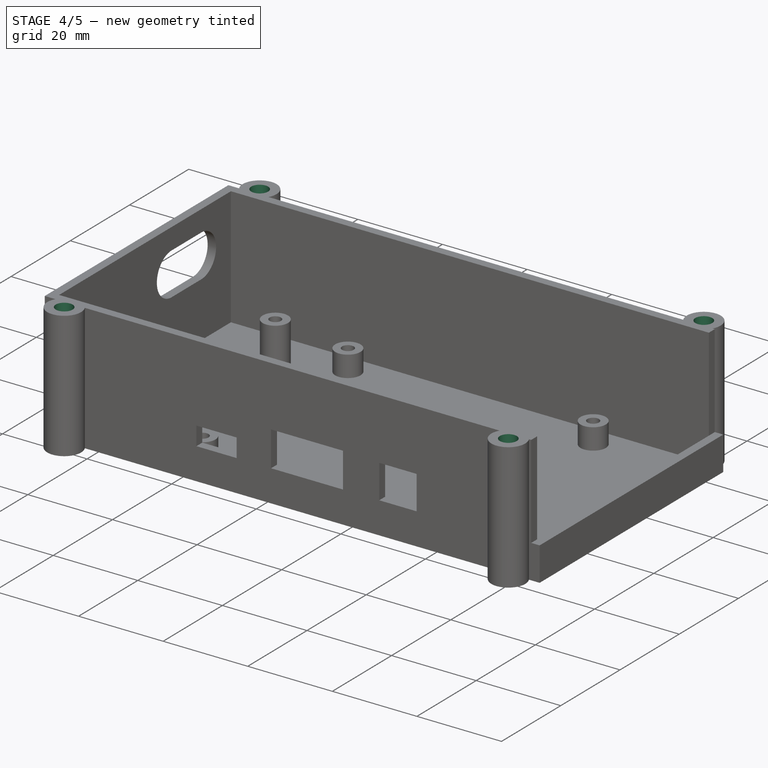
[diagram: stage 4 of 5 — iso view after this stage's code; geometry added in this stage tinted green]
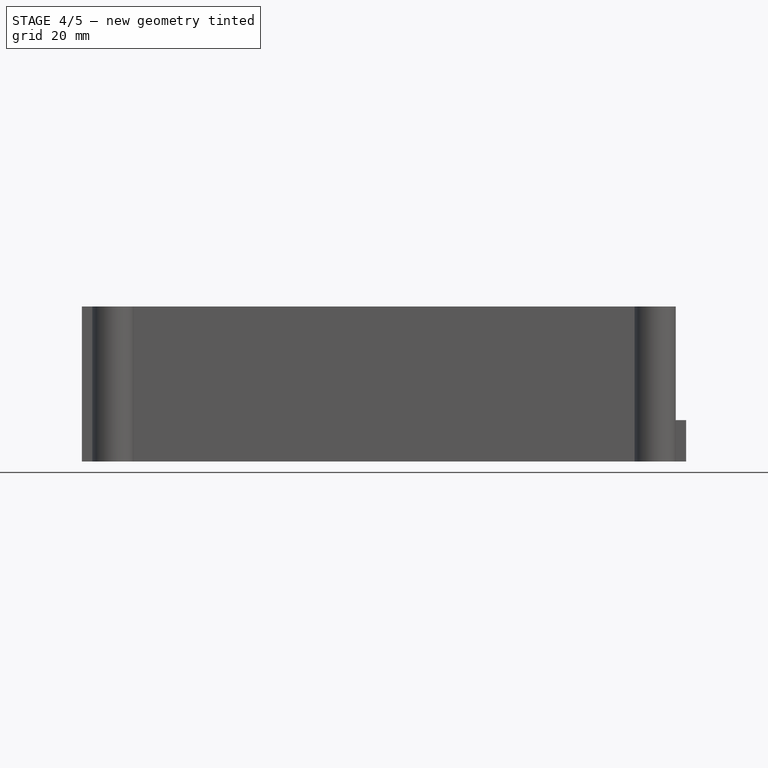
[diagram: stage 4 of 5 — front view after this stage's code; geometry added in this stage tinted green]
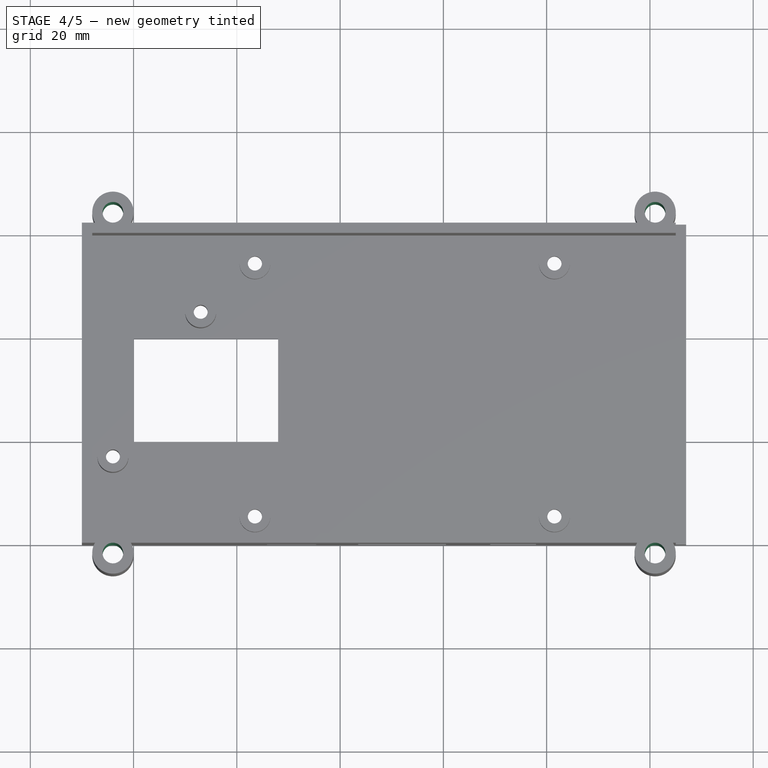
[diagram: stage 4 of 5 — top view after this stage's code; geometry added in this stage tinted green]
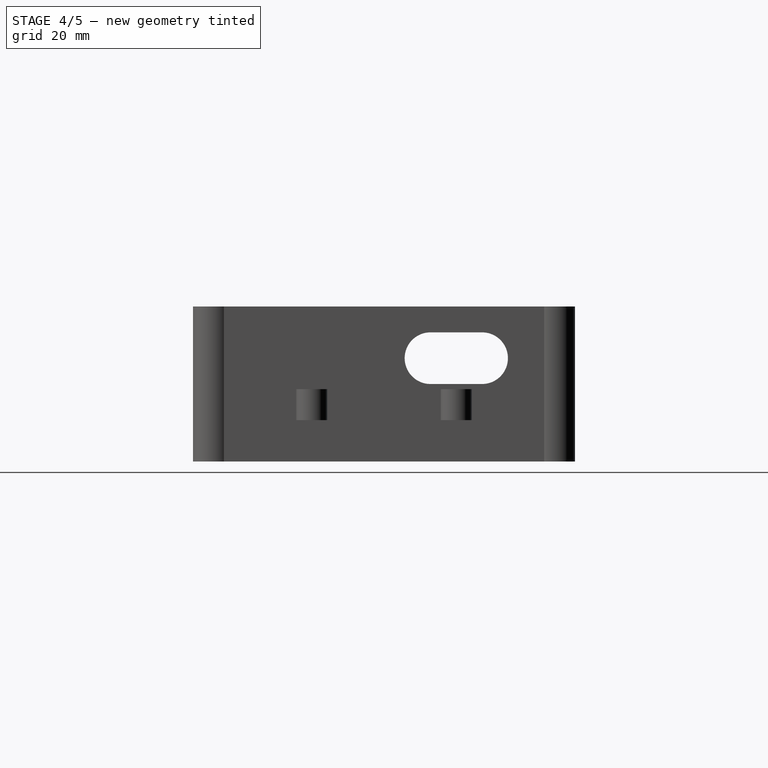
[diagram: stage 4 of 5 — right view after this stage's code; geometry added in this stage tinted green]
FEATURE [Sketcher::SketchObject] Sketch023
  ExternalGeometry = -> [Pocket011]
  MapMode = 5
  Placement = pos=(0,0,30) rot=(0,0,1;0rad)
  Support = -> [Pocket011]
  sketch-geometry (1):
    g0: Circle CenterX=-24 CenterY=64 CenterZ=0 NormalX=0 NormalY=0 NormalZ=1 AngleXU=0 Radius=2
  constraints (2):
    c: Coincident(g0,g-3)
    c: Diameter(g0) = 4
FEATURE [PartDesign::Pocket] Pocket012  label="Case Bolt Hole 1"
  BaseFeature = -> Pocket011
  Length = 30
  Length2 = 100
  Profile = -> Sketch023
  Type = 0
FEATURE [Sketcher::SketchObject] Sketch024
  ExternalGeometry = -> [Pocket012]
  MapMode = 5
  Placement = pos=(0,0,30) rot=(0,0,1;0rad)
  Support = -> [Pocket012]
  sketch-geometry (1):
    g0: Circle CenterX=81 CenterY=64 CenterZ=0 NormalX=0 NormalY=0 NormalZ=1 AngleXU=0 Radius=2
  constraints (2):
    c: Coincident(g0,g-3)
    c: Diameter(g0) = 4
FEATURE [PartDesign::Pocket] Pocket013  label="Case Bolt Hole 2"
  BaseFeature = -> Pocket012
  Length = 30
  Length2 = 100
  Profile = -> Sketch024
  Type = 0
FEATURE [Sketcher::SketchObject] Sketch025
  ExternalGeometry = -> [Pocket013]
  MapMode = 5
  Placement = pos=(0,0,30) rot=(0,0,1;0rad)
  Support = -> [Pocket013]
  sketch-geometry (1):
    g0: Circle CenterX=81 CenterY=-2 CenterZ=0 NormalX=0 NormalY=0 NormalZ=1 AngleXU=0 Radius=2
  constraints (2):
    c: Coincident(g0,g-3)
    c: Diameter(g0) = 4
FEATURE [PartDesign::Pocket] Pocket014  label="Case Bolt Hole 3"
  BaseFeature = -> Pocket013
  Length = 30
  Length2 = 100
  Profile = -> Sketch025
  Type = 0
FEATURE [Sketcher::SketchObject] Sketch026
  ExternalGeometry = -> [Pocket014]
  MapMode = 5
  Placement = pos=(0,0,30) rot=(0,0,1;0rad)
  Support = -> [Pocket014]
  sketch-geometry (1):
    g0: Circle CenterX=-24 CenterY=-2 CenterZ=0 NormalX=0 NormalY=0 NormalZ=1 AngleXU=0 Radius=2
  constraints (2):
    c: Coincident(g0,g-3)
    c: Diameter(g0) = 4
FEATURE [PartDesign::Pocket] Pocket015  label="Case Bolt Hole 4"
  BaseFeature = -> Pocket014
  Length = 30
  Length2 = 100
  Profile = -> Sketch026
  Type = 0
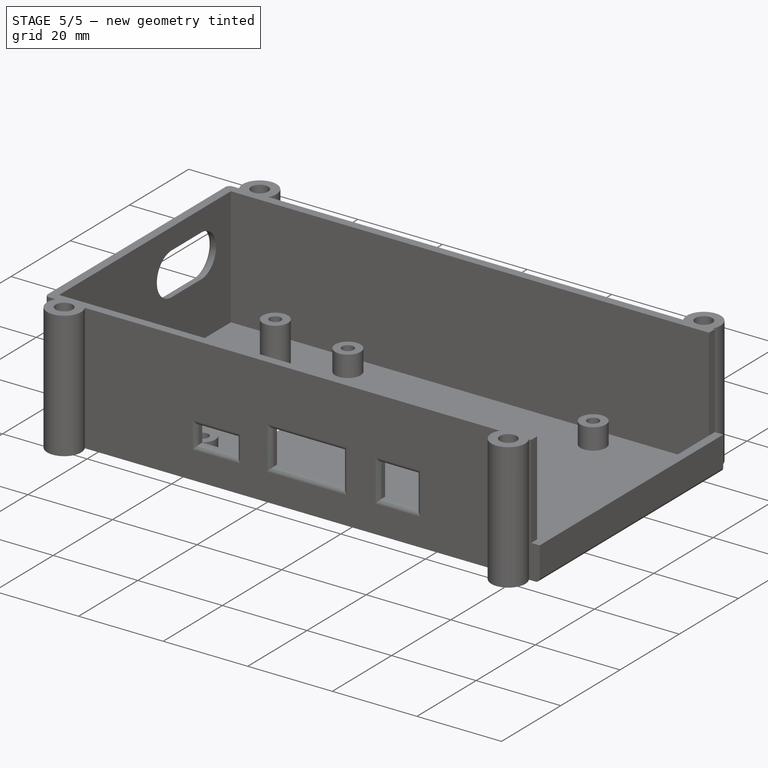
[diagram: stage 5 of 5 — iso view after this stage's code; geometry added in this stage tinted green]
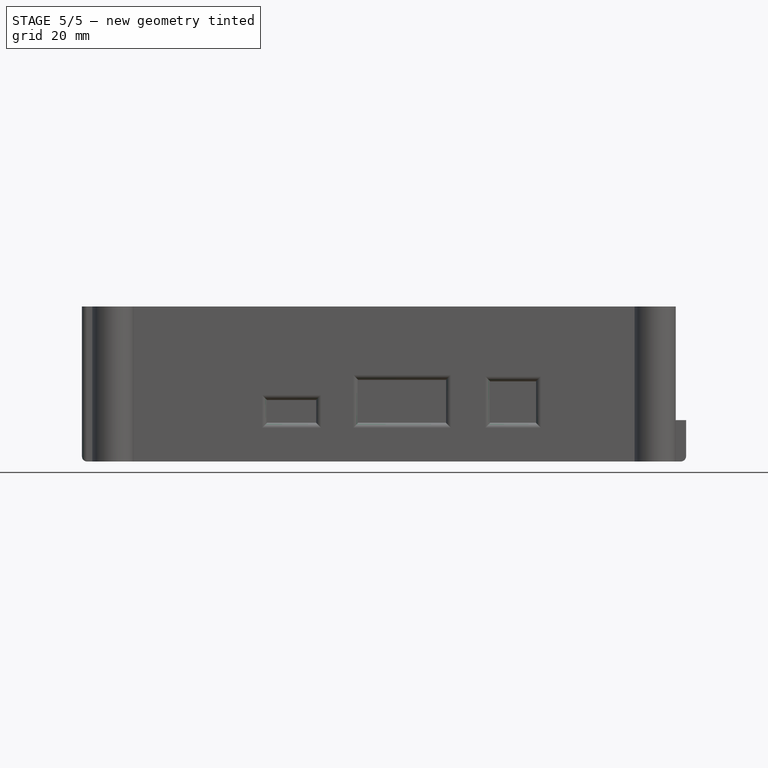
[diagram: stage 5 of 5 — front view after this stage's code; geometry added in this stage tinted green]
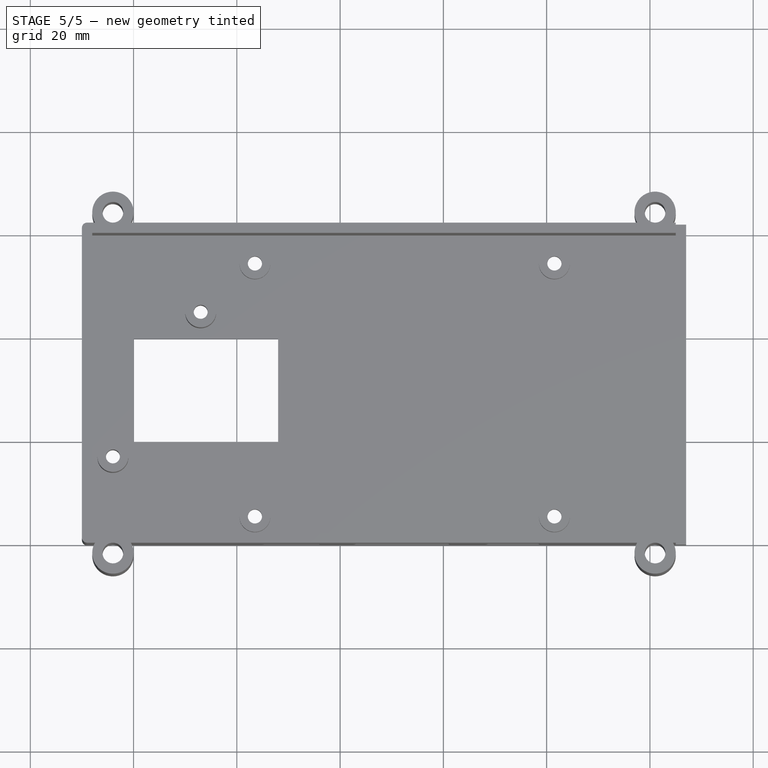
[diagram: stage 5 of 5 — top view after this stage's code; geometry added in this stage tinted green]
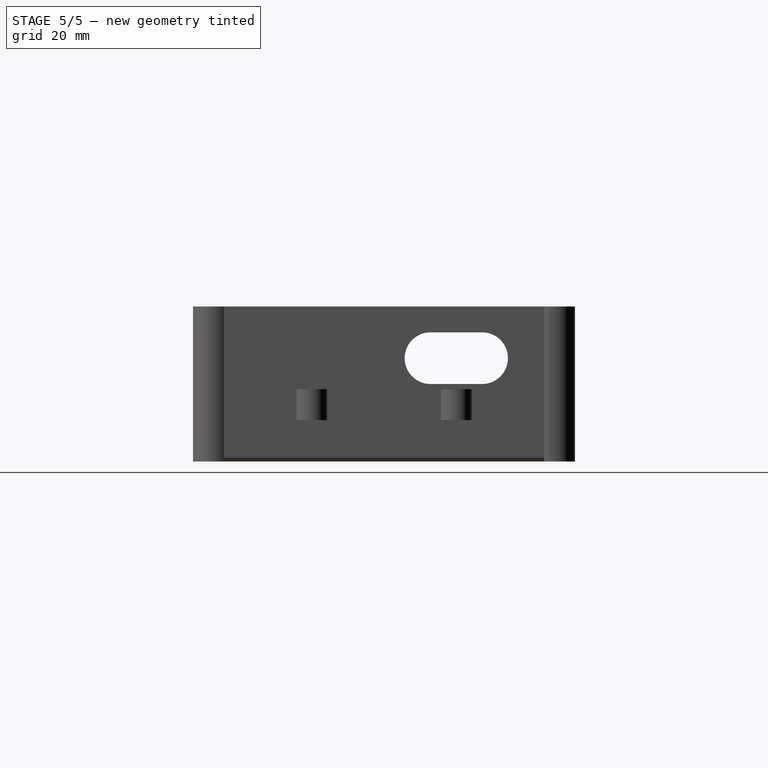
[diagram: stage 5 of 5 — right view after this stage's code; geometry added in this stage tinted green]
FEATURE [Sketcher::SketchObject] Sketch027
  ExternalGeometry = -> [Pocket015]
  MapMode = 5
  Placement = pos=(0,0,0) rot=(1,0,0;3.14159rad)
  Support = -> [Pocket015]
  sketch-geometry (7):
    g0: LineSegment StartX=-21.125 StartY=2 StartZ=0 EndX=-22.5625 EndY=4.48982 EndZ=0
    g1: LineSegment StartX=-22.5625 StartY=4.48982 StartZ=0 EndX=-25.4375 EndY=4.48982 EndZ=0
    g2: LineSegment StartX=-25.4375 StartY=4.48982 StartZ=0 EndX=-26.875 EndY=2 EndZ=0
    g3: LineSegment StartX=-26.875 StartY=2 StartZ=0 EndX=-25.4375 EndY=-0.489823 EndZ=0
    g4: LineSegment StartX=-25.4375 StartY=-0.489823 StartZ=0 EndX=-22.5625 EndY=-0.489823 EndZ=0
    g5: LineSegment StartX=-22.5625 StartY=-0.489823 StartZ=0 EndX=-21.125 EndY=2 EndZ=0
    g6: Circle [constr] CenterX=-24 CenterY=2 CenterZ=0 NormalX=0 NormalY=0 NormalZ=1 AngleXU=0 Radius=2.875
  constraints (16):
    c: Coincident(g0,g1)
    c: Coincident(g1,g2)
    c: Coincident(g2,g3)
    c: Coincident(g3,g4)
    c: Coincident(g4,g5)
    c: Coincident(g5,g0)
    c: Equal(g0, g1-g5) x5
    c: PointOnObject(g0,g6)
    c: PointOnObject(g1,g6)
    c: PointOnObject(g2,g6)
    c: PointOnObject(g3,g6)
    c: PointOnObject(g4,g6)
    c: PointOnObject(g5,g6)
    c: Coincident(g6,g-4)
    c: Diameter(g6) = 5.75
    c: Parallel(g4,g-1)
FEATURE [PartDesign::Pocket] Pocket016  label="Case Nut Pocket 1"
  BaseFeature = -> Pocket015
  Length = 5
  Length2 = 100
  Profile = -> Sketch027
  Type = 0
FEATURE [Sketcher::SketchObject] Sketch028
  ExternalGeometry = -> [Pocket016]
  MapMode = 5
  Placement = pos=(0,0,0) rot=(1,0,0;3.14159rad)
  Support = -> [Pocket016]
  sketch-geometry (7):
    g0: LineSegment StartX=82.4375 StartY=4.48982 StartZ=0 EndX=79.5625 EndY=4.48982 EndZ=0
    g1: LineSegment StartX=79.5625 StartY=4.48982 StartZ=0 EndX=78.125 EndY=2 EndZ=0
    g2: LineSegment StartX=78.125 StartY=2 StartZ=0 EndX=79.5625 EndY=-0.489823 EndZ=0
    g3: LineSegment StartX=79.5625 StartY=-0.489823 StartZ=0 EndX=82.4375 EndY=-0.489823 EndZ=0
    g4: LineSegment StartX=82.4375 StartY=-0.489823 StartZ=0 EndX=83.875 EndY=2 EndZ=0
    g5: LineSegment StartX=83.875 StartY=2 StartZ=0 EndX=82.4375 EndY=4.48982 EndZ=0
    g6: Circle [constr] CenterX=81 CenterY=2 CenterZ=0 NormalX=0 NormalY=0 NormalZ=1 AngleXU=0 Radius=2.875
  constraints (17):
    c: Coincident(g0,g1)
    c: Coincident(g1,g2)
    c: Coincident(g2,g3)
    c: Coincident(g3,g4)
    c: Coincident(g4,g5)
    c: Coincident(g5,g0)
    c: Equal(g0, g1-g5) x5
    c: PointOnObject(g0,g6)
    c: PointOnObject(g1,g6)
    c: PointOnObject(g2,g6)
    c: PointOnObject(g3,g6)
    c: PointOnObject(g4,g6)
    c: PointOnObject(g5,g6)
    c: Coincident(g6,g-3)
    c: Diameter(g6) = 5.75
    c: Parallel(g-1,g3)
    c: Coincident(g-4,g6)
FEATURE [PartDesign::Pocket] Pocket017  label="Case Nut Pocket 2"
  BaseFeature = -> Pocket016
  Length = 5
  Length2 = 100
  Profile = -> Sketch028
  Type = 0
FEATURE [Sketcher::SketchObject] Sketch029
  ExternalGeometry = -> [Pocket017]
  MapMode = 5
  Placement = pos=(0,0,0) rot=(1,0,0;3.14159rad)
  Support = -> [Pocket017]
  sketch-geometry (7):
    g0: LineSegment StartX=82.4375 StartY=-66.4898 StartZ=0 EndX=83.875 EndY=-64 EndZ=0
    g1: LineSegment StartX=83.875 StartY=-64 StartZ=0 EndX=82.4375 EndY=-61.5102 EndZ=0
    g2: LineSegment StartX=82.4375 StartY=-61.5102 StartZ=0 EndX=79.5625 EndY=-61.5102 EndZ=0
    g3: LineSegment StartX=79.5625 StartY=-61.5102 StartZ=0 EndX=78.125 EndY=-64 EndZ=0
    g4: LineSegment StartX=78.125 StartY=-64 StartZ=0 EndX=79.5625 EndY=-66.4898 EndZ=0
    g5: LineSegment StartX=79.5625 StartY=-66.4898 StartZ=0 EndX=82.4375 EndY=-66.4898 EndZ=0
    g6: Circle [constr] CenterX=81 CenterY=-64 CenterZ=0 NormalX=0 NormalY=0 NormalZ=1 AngleXU=0 Radius=2.875
  constraints (16):
    c: Coincident(g0,g1)
    c: Coincident(g1,g2)
    c: Coincident(g2,g3)
    c: Coincident(g3,g4)
    c: Coincident(g4,g5)
    c: Coincident(g5,g0)
    c: Equal(g0, g1-g5) x5
    c: PointOnObject(g0,g6)
    c: PointOnObject(g1,g6)
    c: PointOnObject(g2,g6)
    c: PointOnObject(g3,g6)
    c: PointOnObject(g4,g6)
    c: PointOnObject(g5,g6)
    c: Diameter(g6) = 5.75
    c: Coincident(g-4,g6)
    c: Parallel(g-1,g2)
FEATURE [PartDesign::Pocket] Pocket018  label="Case Nut Pocket 3"
  BaseFeature = -> Pocket017
  Length = 5
  Length2 = 100
  Profile = -> Sketch029
  Type = 0
FEATURE [Sketcher::SketchObject] Sketch030
  ExternalGeometry = -> [Pocket018]
  MapMode = 5
  Placement = pos=(0,0,0) rot=(1,0,0;3.14159rad)
  Support = -> [Pocket018]
  sketch-geometry (7):
    g0: LineSegment StartX=-22.5625 StartY=-66.4898 StartZ=0 EndX=-21.125 EndY=-64 EndZ=0
    g1: LineSegment StartX=-21.125 StartY=-64 StartZ=0 EndX=-22.5625 EndY=-61.5102 EndZ=0
    g2: LineSegment StartX=-22.5625 StartY=-61.5102 StartZ=0 EndX=-25.4375 EndY=-61.5102 EndZ=0
    g3: LineSegment StartX=-25.4375 StartY=-61.5102 StartZ=0 EndX=-26.875 EndY=-64 EndZ=0
    g4: LineSegment StartX=-26.875 StartY=-64 StartZ=0 EndX=-25.4375 EndY=-66.4898 EndZ=0
    g5: LineSegment StartX=-25.4375 StartY=-66.4898 StartZ=0 EndX=-22.5625 EndY=-66.4898 EndZ=0
    g6: Circle [constr] CenterX=-24 CenterY=-64 CenterZ=0 NormalX=0 NormalY=0 NormalZ=1 AngleXU=0 Radius=2.875
  constraints (16):
    c: Coincident(g0,g1)
    c: Coincident(g1,g2)
    c: Coincident(g2,g3)
    c: Coincident(g3,g4)
    c: Coincident(g4,g5)
    c: Coincident(g5,g0)
    c: Equal(g0, g1-g5) x5
    c: PointOnObject(g0,g6)
    c: PointOnObject(g1,g6)
    c: PointOnObject(g2,g6)
    c: PointOnObject(g3,g6)
    c: PointOnObject(g4,g6)
    c: PointOnObject(g5,g6)
    c: Diameter(g6) = 5.75
    c: Coincident(g6,g-3)
    c: Parallel(g2,g-1)
FEATURE [PartDesign::Pocket] Pocket019  label="Case Nut Pocket 4"
  BaseFeature = -> Pocket018
  Length = 5
  Length2 = 100
  Profile = -> Sketch030
  Type = 0
FEATURE [PartDesign::Fillet] Fillet
  Base = -> Pocket019 [Edge85,Edge86,Edge84,Edge87,Edge90,Edge89,Edge91,Edge88,Edge80,Edge81,Edge83,Edge82,Edge68,Edge70,Edge4,Edge66,Edge5,Edge103,Edge69,Edge67]
  BaseFeature = -> Pocket019
  Radius = 1
  SupportTransform = false
FEATURE [PartDesign::Body] Body
  Group = -> [Sketch,Pad,Sketch001,Pocket,Sketch002,Pad001,Sketch003,Pocket001,Sketch004,Pocket002,Sketch005,Pocket003,Sketch006,Pad002,Sketch007,Pocket004,Sketch010,Pad004,Sketch013,Pocket007,Sketch014,Pad005,Sketch020,Pocket010,Sketch021,Pad006,Sketch022,Pocket011,Sketch023,Pocket012,Sketch024,Pocket013,Sketch025,Pocket014,Sketch026,Pocket015,Sketch027,Pocket016,Sketch028,Pocket017,Sketch029,Pocket018,+3 more]
  Origin = -> Origin
  Tip = -> Fillet
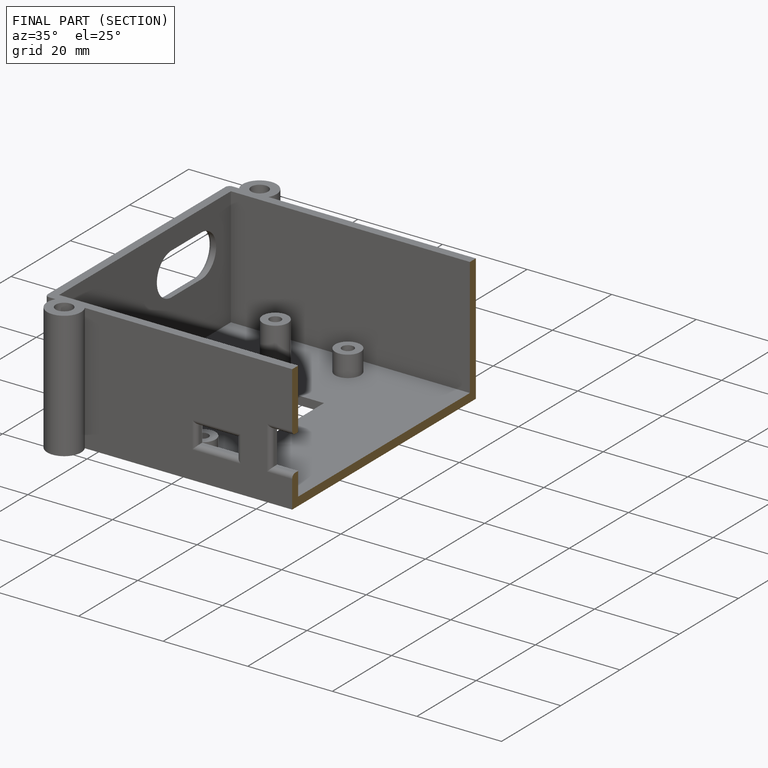
[diagram: finished part — half-section view (interior)]
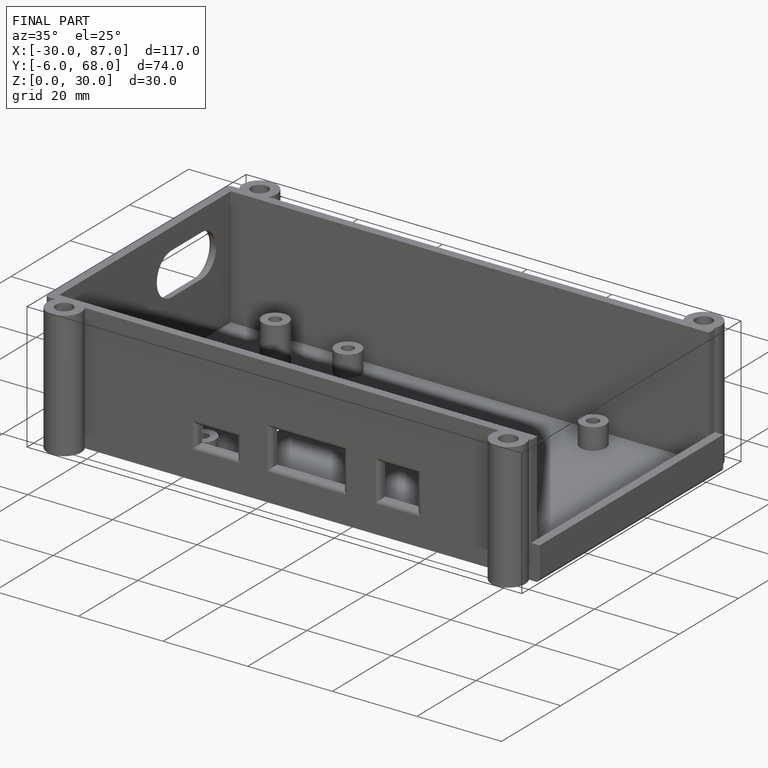
[diagram: finished part — iso view with bounding-box wireframe]
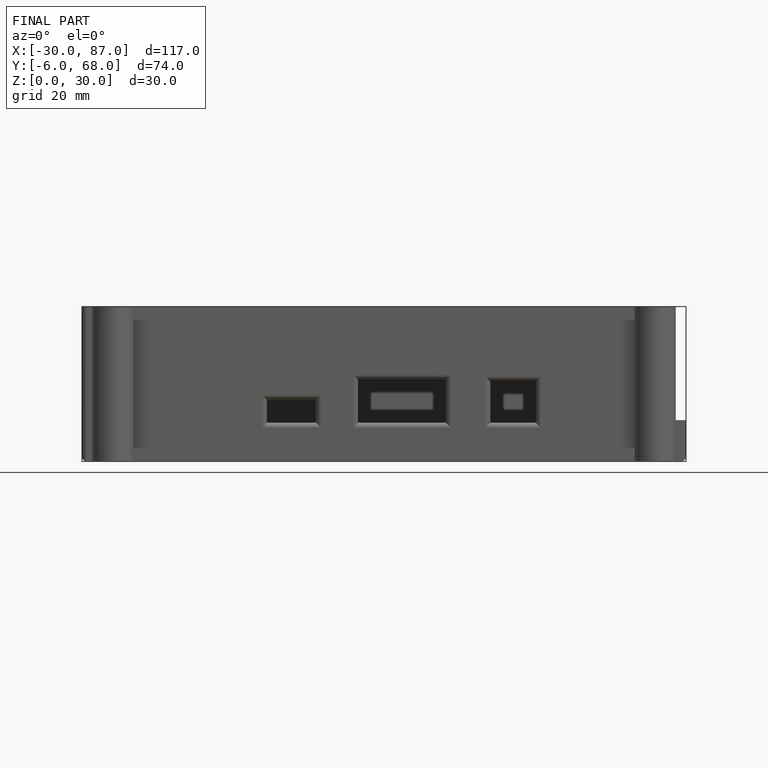
[diagram: finished part — front view with bounding-box wireframe]
